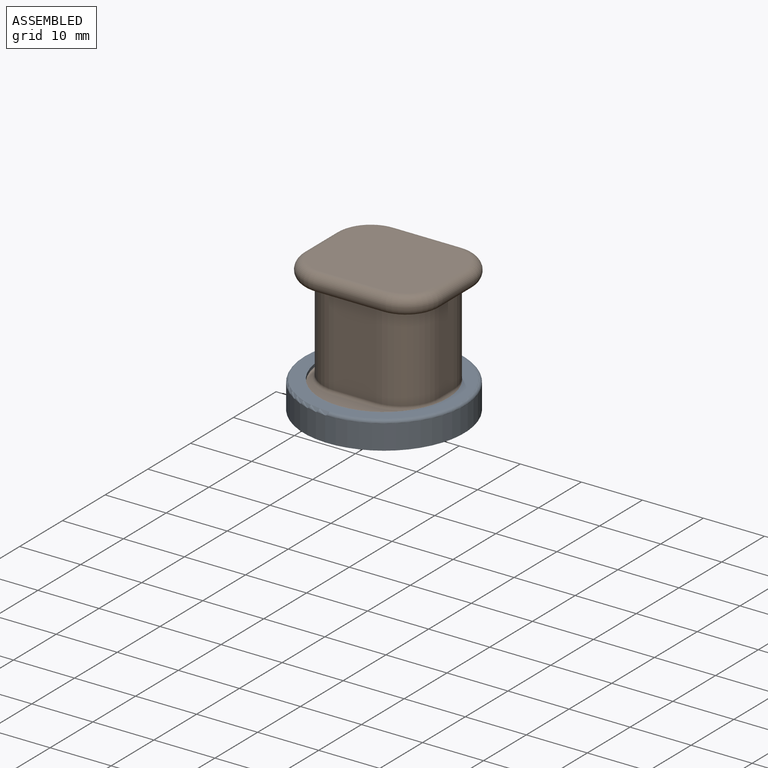
[diagram: assembled view]
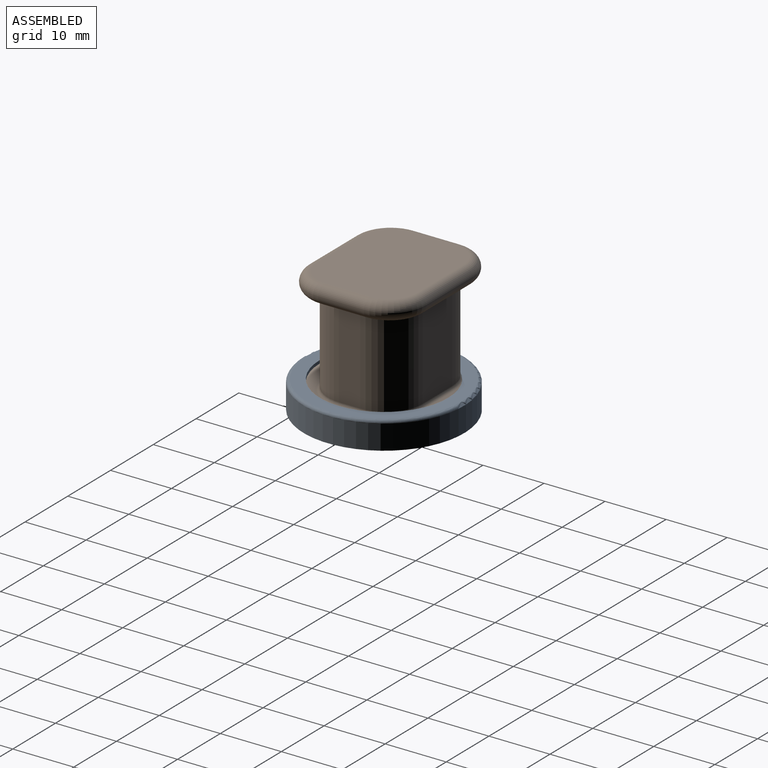
[diagram: assembled view, second angle]
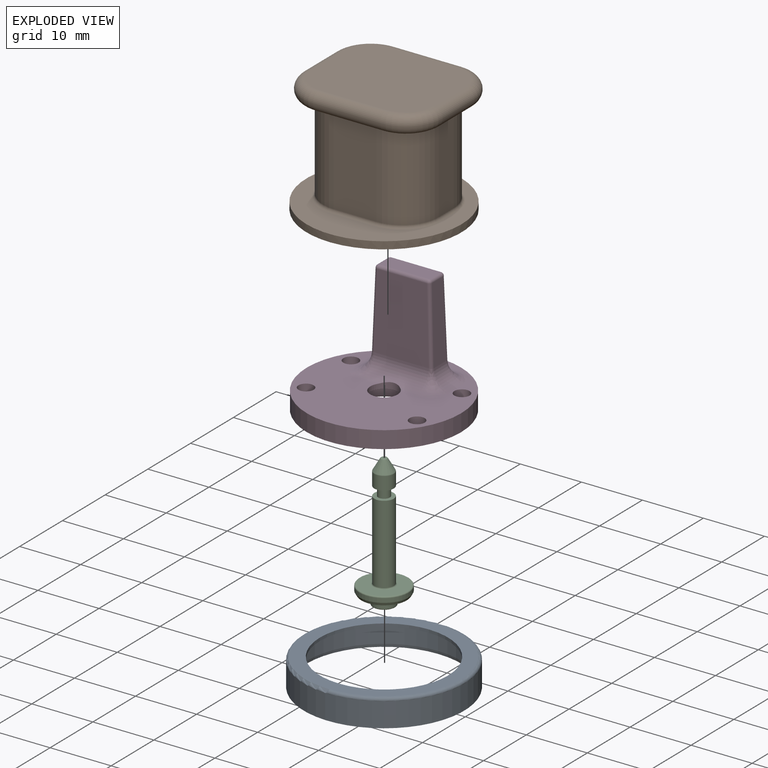
[diagram: exploded view]
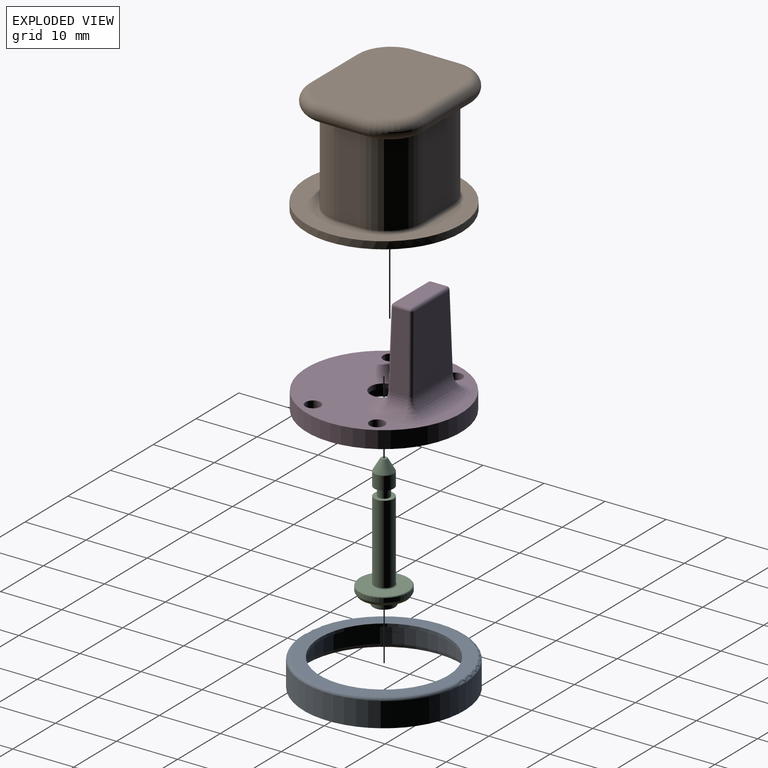
[diagram: exploded view, second angle]
ASSEMBLY  parts=4 mates=3
PART A: 9 faces, bbox 28.5x28.5x4.5 mm
  f0: cylinder r=12.62mm len=25.23mm, axis (0,0,-1), area 261.6mm2, adj f7,f8
  f1: plane 26.3x26.3mm, normal (0,0,-1), area 32.6mm2, adj f2,f7
  f2: cylinder r=13.15mm len=26.3mm, axis (0,0,-1), area 330.5mm2, adj f1,f6
  f3: plane 25.3x25.3mm, normal (0,0,1), area 156.4mm2, adj f4,f6
  f4: cylinder r=10.5mm len=21mm, axis (0,0,-1), area 33mm2, adj f3,f5
  f5: plane 24.83x24.83mm, normal (0,0,-1), area 137.9mm2, adj f4,f8
  f6: torus R=12.65mm, axis (0,0,-1), area 64mm2, adj f2,f3
  f7: cone r=12.62mm half-angle=15deg, axis (0,0,-1), area 41.2mm2, adj f0,f1
  f8: torus R=12.42mm, axis (0,0,1), area 24.8mm2, adj f0,f5
PART B: 29 faces, bbox 25.4x25.4x19 mm
  f0: plane 14.3x3.5mm, normal (1,0,0), area 50mm2, adj f7,f9,f12,f23
  f1: plane 14.3x7mm, normal (0,1,0), area 100.1mm2, adj f7,f9,f10,f27
  f2: plane 14.3x3.5mm, normal (-1,0,0), area 50.1mm2, adj f7,f10,f11,f26
  f3: plane 14.3x7mm, normal (0,-1,0), area 100.1mm2, adj f7,f11,f12,f22
  f4: cylinder r=12.7mm len=25.4mm, axis (0,0,-1), area 95.8mm2, adj f5,f6
  f5: plane 25.4x25.4mm, normal (0,0,1), area 213mm2, adj f4,f21,f22,f23,f24,f25,f26,f27
  f6: plane 25.4x25.4mm, normal (0,0,-1), area 506.7mm2, adj f4
  f7: plane 20x16.5mm, normal (0,0,-1), area 49mm2, adj f0,f1,f2,f3,f9,f10,f11,f12
  f8: plane 20x16.5mm, normal (0,0,1), area 312.6mm2, adj f13,f14,f15,f16,f17,f18,f19,f20
  f9: cylinder r=6mm len=14.3mm, axis (0,0,1), area 134.8mm2, adj f0,f1,f7,f25
  f10: cylinder r=6mm len=14.3mm, axis (0,0,-1), area 134.8mm2, adj f1,f2,f7,f28
  f11: cylinder r=6mm len=14.3mm, axis (0,0,1), area 134.8mm2, adj f2,f3,f7,f24
  f12: cylinder r=6mm len=14.3mm, axis (0,0,-1), area 134.8mm2, adj f0,f3,f7,f21
  f13: cylinder r=1.5mm len=7.5mm, axis (0,1,0), area 35.3mm2, adj f7,f8,f14,f15
  f14: torus R=4.5mm, axis (0,0,1), area 40.4mm2, adj f7,f8,f13,f16
  f15: torus R=4.5mm, axis (0,0,1), area 40.4mm2, adj f7,f8,f13,f17
  f16: cylinder r=1.5mm len=11mm, axis (-1,0,0), area 51.8mm2, adj f7,f8,f14,f18
  f17: cylinder r=1.5mm len=11mm, axis (1,0,0), area 51.8mm2, adj f7,f8,f15,f19
  f18: torus R=4.5mm, axis (0,0,1), area 40.4mm2, adj f7,f8,f16,f20
  f19: torus R=4.5mm, axis (0,0,1), area 40.4mm2, adj f7,f8,f17,f20
  f20: cylinder r=1.5mm len=7.5mm, axis (0,-1,0), area 35.3mm2, adj f7,f8,f18,f19
  f21: torus R=6.5mm, axis (0,0,1), area 7.6mm2, adj f5,f12,f22,f23
  f22: cylinder r=0.5mm len=7mm, axis (-1,0,0), area 5.5mm2, adj f3,f5,f21,f24
  f23: cylinder r=0.5mm len=3.5mm, axis (0,-1,0), area 2.7mm2, adj f0,f5,f21,f25
  f24: torus R=6.5mm, axis (0,0,1), area 7.6mm2, adj f5,f11,f22,f26
  f25: torus R=6.5mm, axis (0,0,1), area 7.6mm2, adj f5,f9,f23,f27
  f26: cylinder r=0.5mm len=3.5mm, axis (0,1,0), area 2.7mm2, adj f2,f5,f24,f28
  f27: cylinder r=0.5mm len=7mm, axis (1,0,0), area 5.5mm2, adj f1,f5,f25,f28
  f28: torus R=6.5mm, axis (0,0,1), area 7.6mm2, adj f5,f10,f26,f27
PART C: 18 faces, bbox 21.8x8.7x8.7 mm
  f0: plane 7.42x7.42mm, normal (-1,0,0), area 32.6mm2, adj f1,f12
  f1: cylinder r=1.84mm len=3.68mm, axis (1,0,0), area 16.2mm2, adj f0,f13
  f2: plane 3.28x3.28mm, normal (-1,0,0), area 8.4mm2, adj f13
  f3: plane 0.73x0.73mm, normal (1,0,0), area 0.4mm2, adj f14
  f4: cone r=0.48mm half-angle=30deg, axis (-1,0,0), area 13.7mm2, adj f14,f15
  f5: cylinder r=1.6mm len=3.2mm, axis (1,0,0), area 21.7mm2, adj f6,f15
  f6: plane 3.2x3.2mm, normal (-1,0,0), area 5.2mm2, adj f5,f7
  f7: cylinder r=0.95mm len=1.9mm, axis (1,0,0), area 9mm2, adj f6,f8
  f8: plane 3.2x3.2mm, normal (1,0,0), area 5.2mm2, adj f7,f9
  f9: cylinder r=1.6mm len=12.9mm, axis (1,0,0), area 129.7mm2, adj f8,f16
  f10: plane 7.6x7.6mm, normal (1,0,0), area 35.2mm2, adj f16,f17
  f11: cylinder r=4mm len=8mm, axis (1,0,0), area 17.6mm2, adj f12,f17
  f12: cone r=4mm half-angle=30deg, axis (1,0,0), area 14mm2, adj f0,f11
  f13: torus R=1.64mm, axis (-1,0,0), area 3.5mm2, adj f1,f2
  f14: torus R=0.36mm, axis (1,0,0), area 0.6mm2, adj f3,f4
  f15: torus R=1.4mm, axis (-1,0,0), area 1mm2, adj f4,f5
  f16: torus R=1.8mm, axis (1,0,0), area 3.3mm2, adj f9,f10
  f17: torus R=3.8mm, axis (1,0,0), area 7.8mm2, adj f10,f11
PART D: 39 faces, bbox 25.3x25.3x18.6 mm
  f0: cylinder r=3mm len=9mm, axis (-1,0,0), area 38.2mm2, adj f5,f13,f27,f29,f34
  f1: plane 12.42x3mm, normal (1,0,0.03), area 34.6mm2, adj f20,f24,f26,f28
  f2: plane 8.13x2.57mm, normal (0,0,1), area 20.9mm2, adj f18,f19,f23,f24
  f3: plane 12.42x3mm, normal (-1,0,0.03), area 34.6mm2, adj f15,f17,f18,f31
  f4: cylinder r=12.64mm len=25.29mm, axis (0,0,-1), area 222.5mm2, adj f5,f6
  f5: plane 25.29x25.29mm, normal (0,0,1), area 321.2mm2, adj f0,f4,f27,f28,f29,f30,f31,f32
  f6: plane 25.29x25.29mm, normal (0,0,-1), area 282.1mm2, adj f4,f8,f35,f36,f37,f38
  f7: cylinder r=5.61mm len=11.22mm, axis (0,0,-1), area 48.3mm2, adj f9,f10
  f8: cylinder r=7.99mm len=15.98mm, axis (0,0,-1), area 68.8mm2, adj f6,f9
  f9: plane 15.98x15.98mm, normal (0,0,-1), area 101.8mm2, adj f7,f8
  f10: plane 11.22x11.22mm, normal (0,0,-1), area 46mm2, adj f7,f11
  f11: cylinder r=4.1mm len=8.2mm, axis (0,0,-1), area 51.5mm2, adj f10,f12
  f12: plane 8.2x8.2mm, normal (0,0,-1), area 36.9mm2, adj f11,f34
  f13: plane 12.36x9mm, normal (0,-1,0.02), area 105.9mm2, adj f0,f17,f23,f26
  f14: plane 12.36x9mm, normal (0,1,0.02), area 105.9mm2, adj f15,f19,f20,f32
  f15: cylinder r=0.5mm len=12.45mm, axis (-0.03,0.02,-1), area 9.8mm2, adj f3,f14,f16,f33
  f16: sphere r=0.5mm, area 0.4mm2, adj f15,f18,f19
  f17: cylinder r=0.5mm len=12.45mm, axis (0.03,0.02,1), area 9.8mm2, adj f3,f13,f21,f29
  f18: cylinder r=0.5mm len=2.57mm, axis (0,-1,0), area 2mm2, adj f2,f3,f16,f21
  f19: cylinder r=0.5mm len=8.13mm, axis (-1,0,0), area 6.3mm2, adj f2,f14,f16,f22
  f20: cylinder r=0.5mm len=12.45mm, axis (-0.03,-0.02,1), area 9.8mm2, adj f1,f14,f22,f30
  f21: sphere r=0.5mm, area 0.4mm2, adj f17,f18,f23
  f22: sphere r=0.5mm, area 0.4mm2, adj f19,f20,f24
  f23: cylinder r=0.5mm len=8.13mm, axis (1,0,0), area 6.3mm2, adj f2,f13,f21,f25
  f24: cylinder r=0.5mm len=2.57mm, axis (0,1,0), area 2mm2, adj f1,f2,f22,f25
  f25: sphere r=0.5mm, area 0.4mm2, adj f23,f24,f26
  f26: cylinder r=0.5mm len=12.45mm, axis (0.03,-0.02,-1), area 9.8mm2, adj f1,f13,f25,f27
  f27: bspline ~3.5x3.5mm, area 11.7mm2, adj f0,f5,f26,f28
  f28: cylinder r=3mm len=3mm, axis (0,-1,0), area 13.7mm2, adj f1,f5,f27,f30,f36
  f29: bspline ~3.5x3.5mm, area 11.7mm2, adj f0,f5,f17,f31
  f30: bspline ~3.5x3.5mm, area 11.7mm2, adj f5,f20,f28,f32
  f31: cylinder r=3mm len=3mm, axis (0,1,0), area 13.7mm2, adj f3,f5,f29,f33,f35
  f32: cylinder r=3mm len=9mm, axis (1,0,0), area 41.9mm2, adj f5,f14,f30,f33
  f33: bspline ~3.5x3.5mm, area 11.7mm2, adj f5,f15,f31,f32
  f34: cylinder r=2.25mm len=4.5mm, axis (0,0,-1), area 12mm2, adj f0,f5,f12
  f35: cylinder r=1.25mm len=2.8mm, axis (0,0,1), area 22mm2, adj f5,f6,f31
  f36: cylinder r=1.25mm len=2.8mm, axis (0,0,1), area 22mm2, adj f5,f6,f28
  f37: cylinder r=1.25mm len=2.8mm, axis (0,0,1), area 22mm2, adj f5,f6
  f38: cylinder r=1.25mm len=2.8mm, axis (0,0,1), area 22mm2, adj f5,f6
PLACE A t=(-13.54,0.34,2.93)mm
PLACE B t=(-13.54,0.34,5.73)mm
PLACE C rot(axis=(0,-1,0),90deg) t=(-13.54,0.34,21.68)mm
PLACE D t=(-13.54,0.34,2.93)mm
MATE fastened A.f0 <-> D.f4  axis (0,0,-1) through (-13.54,0.34,2.93)mm
MATE fastened C.f1 <-> D.f11  axis (0,0,1) through (-13.54,0.34,2.93)mm
MATE fastened B.f4 <-> D.f4  axis (0,0,-1) through (-13.54,0.34,5.73)mm
